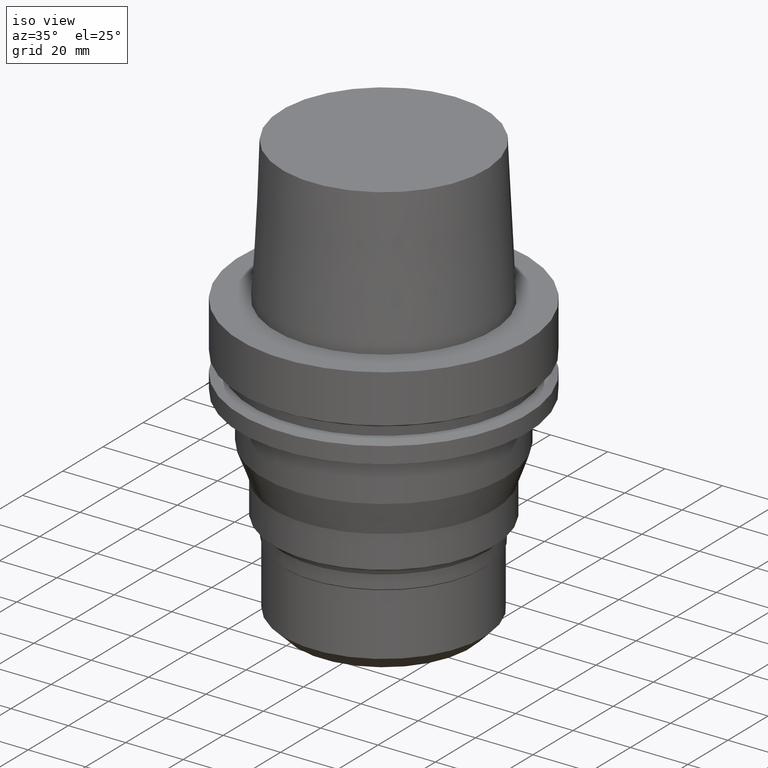
[diagram: clean part render]
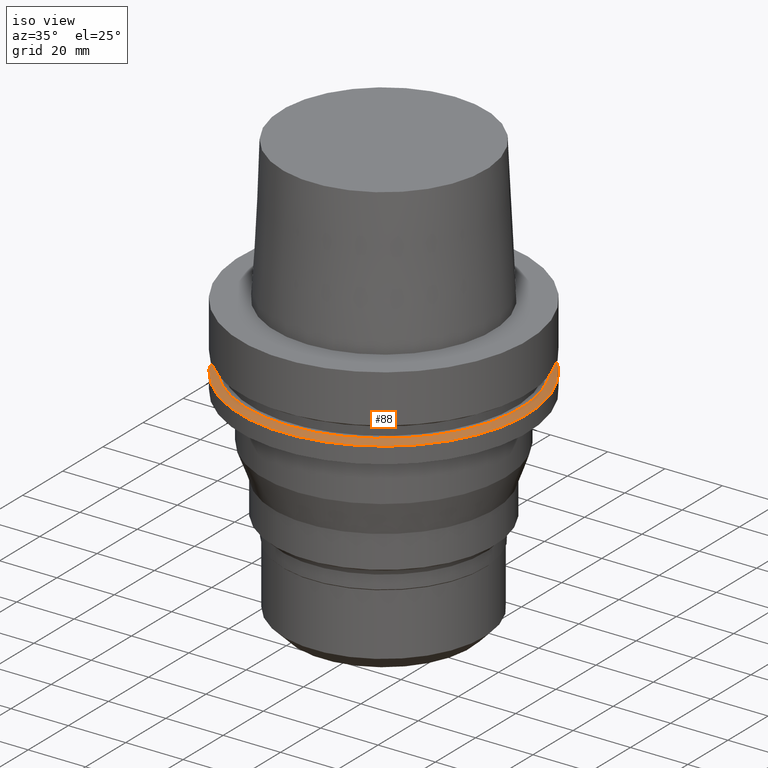
[diagram: same view with one face highlighted and labeled with its STEP entity id]
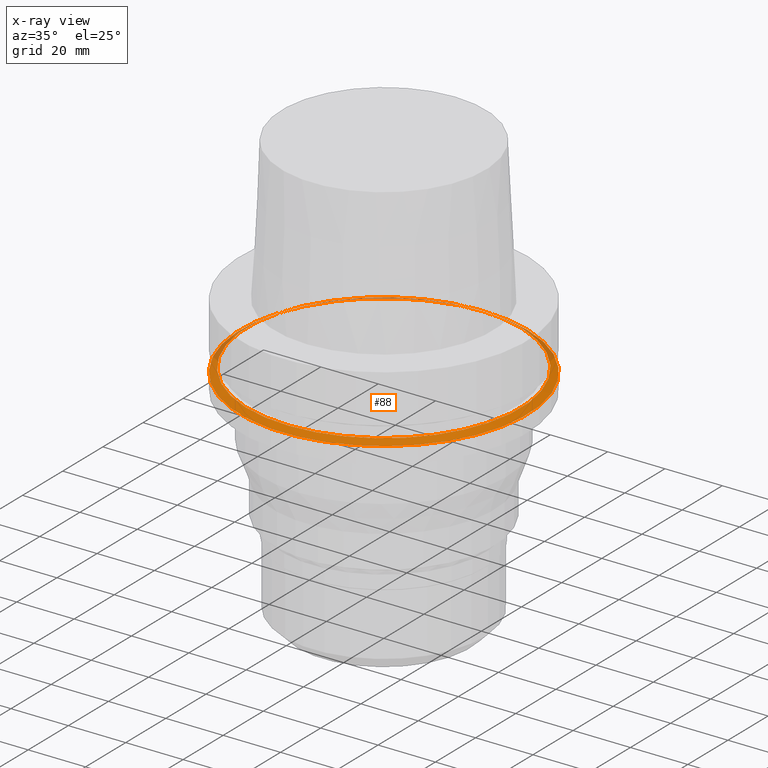
[diagram: x-ray of the same camera — body ghosted, the highlighted face saturated]
A machine part, iso view. The second image highlights one B-rep face of the part: STEP entity #88.
The next image is the same camera in x-ray: the body ghosted, the highlighted face saturated — about 12% of this face is hidden behind the body in this view.
In plain terms, the highlighted conical surface has half-angle 60 deg.
Its self-contained STEP definition (entity closure, byte-faithful):
#88=ADVANCED_FACE('Unnamed[1]',(#231,#232),#233,.T.);
#143=EDGE_CURVE('Unnamed[1]',#317,#317,#318,.T.);
#175=EDGE_CURVE('Unnamed[1]',#367,#367,#368,.T.);
#231=FACE_BOUND('',#426,.T.);
#232=FACE_BOUND('',#427,.T.);
#233=CONICAL_SURFACE('',#428,48.81129763,1.04719755328238);
#317=VERTEX_POINT('',#532);
#318=CIRCLE('',#533,47.62259526);
#367=VERTEX_POINT('',#596);
#368=CIRCLE('',#597,50.0);
#426=EDGE_LOOP('',(#651));
#427=EDGE_LOOP('',(#652));
#428=AXIS2_PLACEMENT_3D('',#653,#654,#655);
#532=CARTESIAN_POINT('',(1.33945743656742E-015,47.62259526,-21.875));
#533=AXIS2_PLACEMENT_3D('',#748,#749,#750);
#596=CARTESIAN_POINT('',(1.42350465615161E-015,50.0,-23.24759526));
#597=AXIS2_PLACEMENT_3D('',#802,#803,#804);
#651=ORIENTED_EDGE('',*,*,#175,.F.);
#652=ORIENTED_EDGE('',*,*,#143,.T.);
#653=CARTESIAN_POINT('',(1.38148104635951E-015,2.76296209271903E-015,-22.56129763));
#654=DIRECTION('',(6.12323399573677E-017,1.22464679914735E-016,-1.0));
#655=DIRECTION('',(-1.23259516440783E-032,1.0,1.22464679914735E-016));
#748=CARTESIAN_POINT('',(1.33945743656742E-015,2.67891487313484E-015,-21.875));
#749=DIRECTION('',(6.12323399573676E-017,1.22464679914735E-016,-1.0));
#750=DIRECTION('',(-1.23259516440783E-032,1.0,1.22464679914735E-016));
#802=CARTESIAN_POINT('',(1.42350465615161E-015,2.84700931230322E-015,-23.24759526));
#803=DIRECTION('',(6.12323399573677E-017,1.22464679914735E-016,-1.0));
#804=DIRECTION('',(-1.23259516440783E-032,1.0,1.22464679914735E-016));